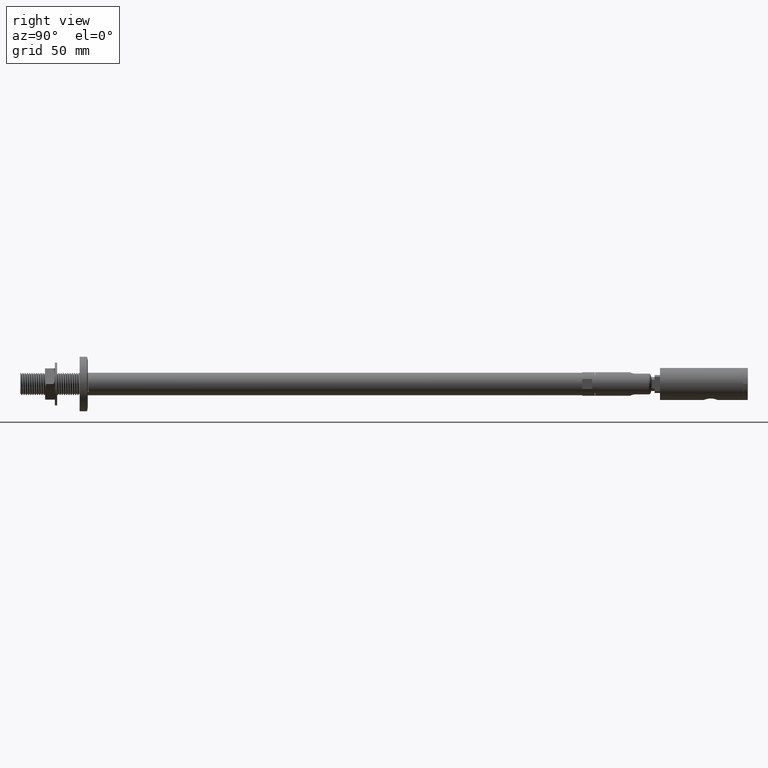
[diagram: clean part render]
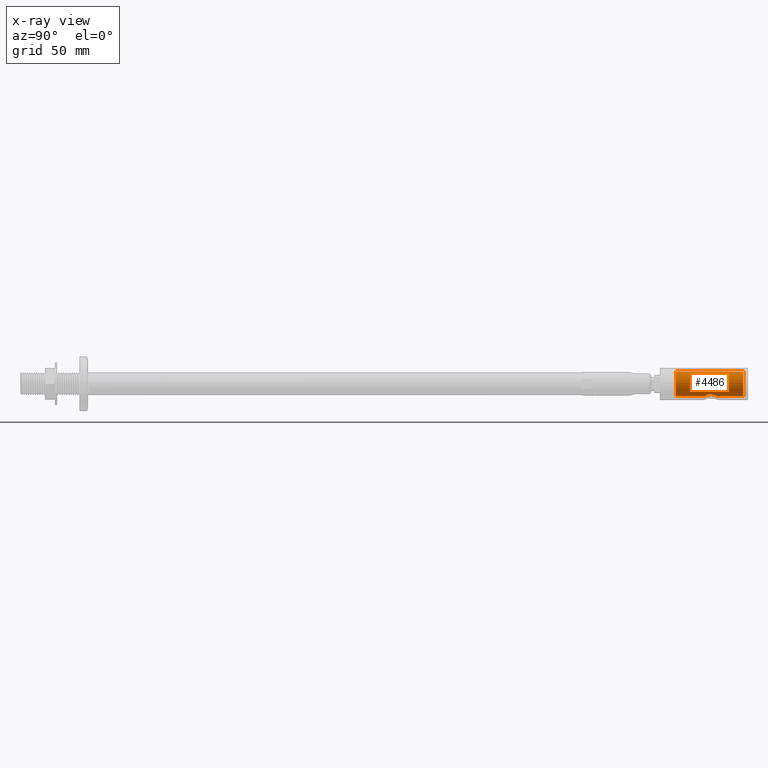
[diagram: x-ray — body ghosted, one internal face saturated and labeled with its STEP entity id]
A machine part, right view, then the same camera in x-ray: the body is ghosted and one INTERNAL B-rep face — a face not visible from any outside direction — is saturated and labeled: STEP entity #4486.
In plain terms, the highlighted cylindrical surface (edge-blend (fillet) strip) has radius 5.5 mm, axis along (-0, 1, -0).
Its self-contained STEP definition (entity closure, byte-faithful):
#45 = CARTESIAN_POINT ( 'NONE',  ( -2.999999999999919176, 22.29923529323846054, 4.609772228646496828 ) ) ;
#117 = CARTESIAN_POINT ( 'NONE',  ( -2.600013786663488702, 20.99090945221328042, 4.848145974573571770 ) ) ;
#134 = CARTESIAN_POINT ( 'NONE',  ( 0.000000000000000000, 6.999999999999999112, 5.500000000000000000 ) ) ;
#140 = CARTESIAN_POINT ( 'NONE',  ( -0.7898253786553729450, 25.40104760419907493, 5.446555356114085811 ) ) ;
#198 = CARTESIAN_POINT ( 'NONE',  ( -2.688973191931545603, 23.84459195138522958, 4.798664069531891840 ) ) ;
#428 = LINE ( 'NONE', #134, #6471 ) ;
#515 = CARTESIAN_POINT ( 'NONE',  ( 0.000000000000000000, 6.999999999999999112, 5.500000000000000000 ) ) ;
#725 = DIRECTION ( 'NONE',  ( -0.000000000000000000, 1.000000000000000000, -0.000000000000000000 ) ) ;
#1107 = B_SPLINE_CURVE_WITH_KNOTS ( 'NONE', 3,
 ( #7615, #2940, #8928, #20170, #2675, #13763, #5814, #14180, #9267, #117, #10965, #1432, #17393, #1502, #45, #20513 ),
 .UNSPECIFIED., .F., .F.,
 ( 4, 2, 2, 2, 2, 2, 2, 4 ),
 ( 5.804047701497612433E-19, 0.0005991392059546555085, 0.001198278411909310583, 0.002396556823818624636, 0.002995696029773280578, 0.003594835235727936954, 0.004193974441682592896, 0.004793113647637249272 ),
 .UNSPECIFIED. ) ;
#1371 = CIRCLE ( 'NONE', #2374, 5.500000000000000000 ) ;
#1432 = CARTESIAN_POINT ( 'NONE',  ( -2.842147896929472672, 21.52011923173336072, 4.709542503899458943 ) ) ;
#1502 = CARTESIAN_POINT ( 'NONE',  ( -2.980053799290210303, 22.10167228361699543, 4.622924768546602614 ) ) ;
#1520 = CARTESIAN_POINT ( 'NONE',  ( 0.000000000000000000, 37.00000000000000000, 0.000000000000000000 ) ) ;
#1722 = AXIS2_PLACEMENT_3D ( 'NONE', #11543, #16429, #8512 ) ;
#1727 = CARTESIAN_POINT ( 'NONE',  ( -1.512810528442746660, 25.09797145853129052, 5.290583633360591342 ) ) ;
#1916 = CARTESIAN_POINT ( 'NONE',  ( 2.367850809003732438E-13, 25.50000000000231282, 5.500000000001260325 ) ) ;
#2134 = CARTESIAN_POINT ( 'NONE',  ( -3.000000000000238032, 22.49999999999878142, 4.609772228646712655 ) ) ;
#2373 = LINE ( 'NONE', #515, #20081 ) ;
#2374 = AXIS2_PLACEMENT_3D ( 'NONE', #16592, #11700, #13219 ) ;
#2675 = CARTESIAN_POINT ( 'NONE',  ( -0.9841598409990344187, 19.65920670208152998, 5.414407988516887649 ) ) ;
#2940 = CARTESIAN_POINT ( 'NONE',  ( -0.2028450868287403619, 19.50000000000000000, 5.500000000000000000 ) ) ;
#3434 = EDGE_CURVE ( 'NONE', #5877, #13504, #2373, .T. ) ;
#3658 = CARTESIAN_POINT ( 'NONE',  ( 0.000000000000000000, 37.00000000000000000, 5.500000000000000000 ) ) ;
#3695 = EDGE_LOOP ( 'NONE', ( #15928, #18686, #14160, #11083, #15862, #11410, #17896 ) ) ;
#4352 = AXIS2_PLACEMENT_3D ( 'NONE', #1520, #4721, #9432 ) ;
#4486 = ADVANCED_FACE ( 'NONE', ( #7752 ), #6270, .F. ) ;
#4721 = DIRECTION ( 'NONE',  ( 0.000000000000000000, 1.000000000000000000, 0.000000000000000000 ) ) ;
#4794 = CARTESIAN_POINT ( 'NONE',  ( -0.3982291828506640541, 25.48015349412129282, 5.489098550209243754 ) ) ;
#4819 = EDGE_CURVE ( 'NONE', #18578, #5877, #1371, .T. ) ;
#5216 = VECTOR ( 'NONE', #11571, 1000.000000000000000 ) ;
#5814 = CARTESIAN_POINT ( 'NONE',  ( -1.854930395794190945, 20.11116518655818552, 5.186082792701672162 ) ) ;
#5877 = VERTEX_POINT ( 'NONE', #14667 ) ;
#6270 = CYLINDRICAL_SURFACE ( 'NONE', #1722, 5.500000000000000000 ) ;
#6471 = VECTOR ( 'NONE', #8166, 1000.000000000000000 ) ;
#6498 = EDGE_CURVE ( 'NONE', #15466, #18972, #19529, .T. ) ;
#6583 = CARTESIAN_POINT ( 'NONE',  ( -2.380251542166365031, 24.33628607114166442, 4.959750888282729697 ) ) ;
#7071 = VERTEX_POINT ( 'NONE', #2134 ) ;
#7615 = CARTESIAN_POINT ( 'NONE',  ( 5.987520171168200334E-16, 19.50000000000000000, 5.500000000000000000 ) ) ;
#7752 = FACE_OUTER_BOUND ( 'NONE', #3695, .T. ) ;
#7977 = CARTESIAN_POINT ( 'NONE',  ( -3.000000000000238032, 22.49999999999878142, 4.609772228646712655 ) ) ;
#8166 = DIRECTION ( 'NONE',  ( -0.000000000000000000, 1.000000000000000000, -0.000000000000000000 ) ) ;
#8512 = DIRECTION ( 'NONE',  ( 0.000000000000000000, 0.000000000000000000, 1.000000000000000000 ) ) ;
#8928 = CARTESIAN_POINT ( 'NONE',  ( -0.4015615919508554454, 19.52035516702399676, 5.488822511157115613 ) ) ;
#9267 = CARTESIAN_POINT ( 'NONE',  ( -2.384654974100007152, 20.66946821203249485, 4.957621580568069675 ) ) ;
#9419 = B_SPLINE_CURVE_WITH_KNOTS ( 'NONE', 3,
 ( #7977, #12871, #9647, #12936, #9576, #198, #14462, #6583, #17545, #11197, #17683, #1727, #11334, #19194, #140, #4794, #17747, #1916 ),
 .UNSPECIFIED., .F., .F.,
 ( 4, 2, 2, 2, 2, 2, 2, 2, 4 ),
 ( 0.004793113647637249272, 0.005391306200153704598, 0.005989498752670159923, 0.006587691305186615248, 0.007185883857703070574, 0.007784076410219525899, 0.008382268962735981224, 0.008980461515252436550, 0.009578654067768891875 ),
 .UNSPECIFIED. ) ;
#9432 = DIRECTION ( 'NONE',  ( 0.000000000000000000, 0.000000000000000000, 1.000000000000000000 ) ) ;
#9576 = CARTESIAN_POINT ( 'NONE',  ( -2.841208880860377928, 23.48287152668931554, 4.710125876711049209 ) ) ;
#9647 = CARTESIAN_POINT ( 'NONE',  ( -2.979406519636150108, 22.90309236774377766, 4.623345297538548948 ) ) ;
#10965 = CARTESIAN_POINT ( 'NONE',  ( -2.691507415362361932, 21.16068718325819376, 4.797226604727529597 ) ) ;
#11083 = ORIENTED_EDGE ( 'NONE', *, *, #20478, .F. ) ;
#11197 = CARTESIAN_POINT ( 'NONE',  ( -1.985714322022631650, 24.75691542415008328, 5.131131811173099244 ) ) ;
#11312 = CARTESIAN_POINT ( 'NONE',  ( 5.987520171168200334E-16, 19.50000000000000000, 5.500000000000000000 ) ) ;
#11334 = CARTESIAN_POINT ( 'NONE',  ( -1.342055353739652013, 25.19017400206314150, 5.336930569398892210 ) ) ;
#11410 = ORIENTED_EDGE ( 'NONE', *, *, #11720, .F. ) ;
#11543 = CARTESIAN_POINT ( 'NONE',  ( 0.000000000000000000, 6.999999999999999112, 0.000000000000000000 ) ) ;
#11571 = DIRECTION ( 'NONE',  ( -0.000000000000000000, 1.000000000000000000, -0.000000000000000000 ) ) ;
#11700 = DIRECTION ( 'NONE',  ( 0.000000000000000000, 1.000000000000000000, 0.000000000000000000 ) ) ;
#11720 = EDGE_CURVE ( 'NONE', #13504, #7071, #1107, .T. ) ;
#12542 = EDGE_CURVE ( 'NONE', #18578, #15466, #15719, .T. ) ;
#12871 = CARTESIAN_POINT ( 'NONE',  ( -3.000000000000080380, 22.70044749400115691, 4.609772228646390246 ) ) ;
#12936 = CARTESIAN_POINT ( 'NONE',  ( -2.900395975675240212, 23.29186479304900104, 4.673316609626301243 ) ) ;
#12988 = VERTEX_POINT ( 'NONE', #17753 ) ;
#13219 = DIRECTION ( 'NONE',  ( 0.000000000000000000, 0.000000000000000000, 1.000000000000000000 ) ) ;
#13504 = VERTEX_POINT ( 'NONE', #11312 ) ;
#13763 = CARTESIAN_POINT ( 'NONE',  ( -1.527820158781844073, 19.88839624388483784, 5.296536924956038561 ) ) ;
#14160 = ORIENTED_EDGE ( 'NONE', *, *, #6498, .T. ) ;
#14180 = CARTESIAN_POINT ( 'NONE',  ( -2.261155157652988468, 20.51909061595248218, 5.015848156545279934 ) ) ;
#14462 = CARTESIAN_POINT ( 'NONE',  ( -2.596692334365790167, 24.01483756875124342, 4.849939710805963422 ) ) ;
#14621 = CARTESIAN_POINT ( 'NONE',  ( 6.735557395310442023E-16, 6.999999999999999112, -5.500000000000000000 ) ) ;
#14667 = CARTESIAN_POINT ( 'NONE',  ( 0.000000000000000000, 6.999999999999999112, 5.500000000000000000 ) ) ;
#15466 = VERTEX_POINT ( 'NONE', #15981 ) ;
#15719 = LINE ( 'NONE', #14621, #5216 ) ;
#15862 = ORIENTED_EDGE ( 'NONE', *, *, #19461, .F. ) ;
#15928 = ORIENTED_EDGE ( 'NONE', *, *, #4819, .F. ) ;
#15981 = CARTESIAN_POINT ( 'NONE',  ( 6.735557395310442023E-16, 37.00000000000000000, -5.500000000000000000 ) ) ;
#16429 = DIRECTION ( 'NONE',  ( -0.000000000000000000, 1.000000000000000000, -0.000000000000000000 ) ) ;
#16592 = CARTESIAN_POINT ( 'NONE',  ( 0.000000000000000000, 6.999999999999999112, 0.000000000000000000 ) ) ;
#16613 = CARTESIAN_POINT ( 'NONE',  ( 6.735557395310442023E-16, 6.999999999999999112, -5.500000000000000000 ) ) ;
#17393 = CARTESIAN_POINT ( 'NONE',  ( -2.901613659132187273, 21.71258410643394399, 4.672557354965604759 ) ) ;
#17545 = CARTESIAN_POINT ( 'NONE',  ( -2.256755148613646789, 24.48589647254285495, 5.017831327528270435 ) ) ;
#17683 = CARTESIAN_POINT ( 'NONE',  ( -1.836503340606040924, 24.88019051217613153, 5.187111561986403885 ) ) ;
#17747 = CARTESIAN_POINT ( 'NONE',  ( -0.2002324416191929857, 25.50000000000004263, 5.500000000000022204 ) ) ;
#17753 = CARTESIAN_POINT ( 'NONE',  ( 2.367850809003732438E-13, 25.50000000000231282, 5.500000000001260325 ) ) ;
#17896 = ORIENTED_EDGE ( 'NONE', *, *, #3434, .F. ) ;
#18578 = VERTEX_POINT ( 'NONE', #16613 ) ;
#18686 = ORIENTED_EDGE ( 'NONE', *, *, #12542, .T. ) ;
#18972 = VERTEX_POINT ( 'NONE', #3658 ) ;
#19194 = CARTESIAN_POINT ( 'NONE',  ( -0.9819134757615712861, 25.34147754874035741, 5.414774824607525794 ) ) ;
#19461 = EDGE_CURVE ( 'NONE', #7071, #12988, #9419, .T. ) ;
#19529 = CIRCLE ( 'NONE', #4352, 5.500000000000000000 ) ;
#20081 = VECTOR ( 'NONE', #725, 1000.000000000000000 ) ;
#20170 = CARTESIAN_POINT ( 'NONE',  ( -0.7912918624831829506, 19.59941519152109635, 5.446308975763594518 ) ) ;
#20478 = EDGE_CURVE ( 'NONE', #12988, #18972, #428, .T. ) ;
#20513 = CARTESIAN_POINT ( 'NONE',  ( -3.000000000000238032, 22.49999999999878142, 4.609772228646712655 ) ) ;